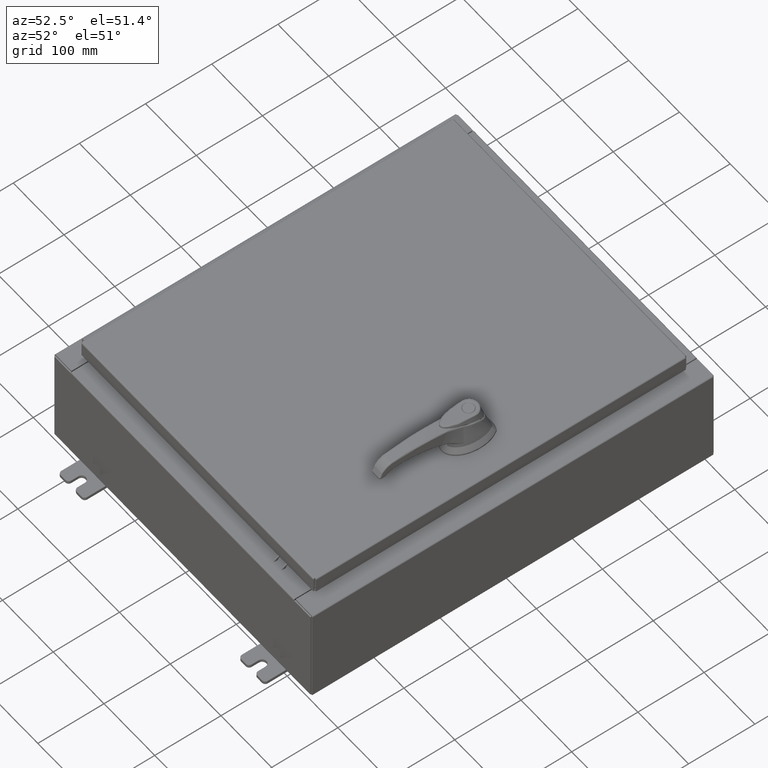
[diagram: clean part render]
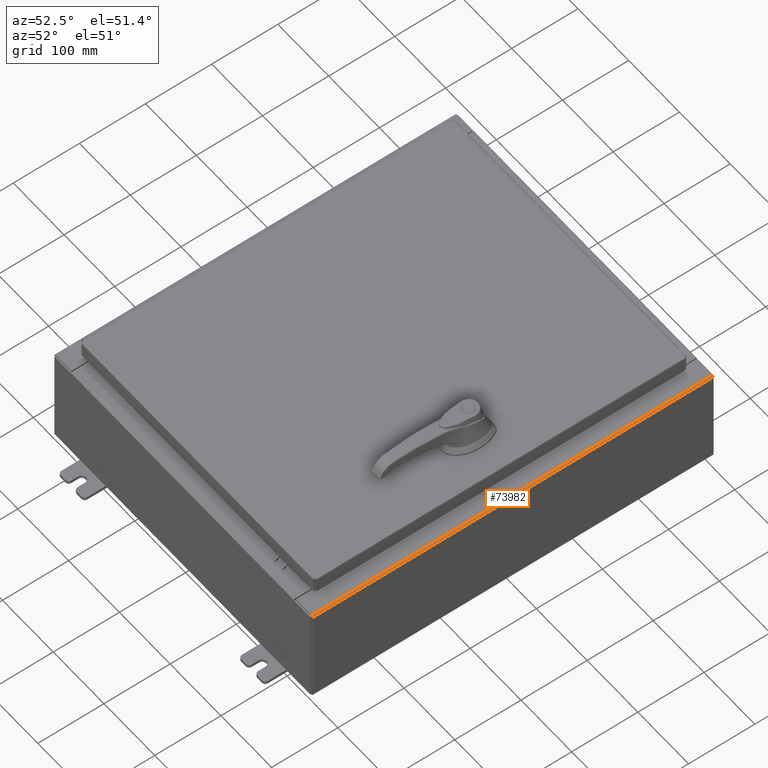
[diagram: same view with one face highlighted and labeled with its STEP entity id]
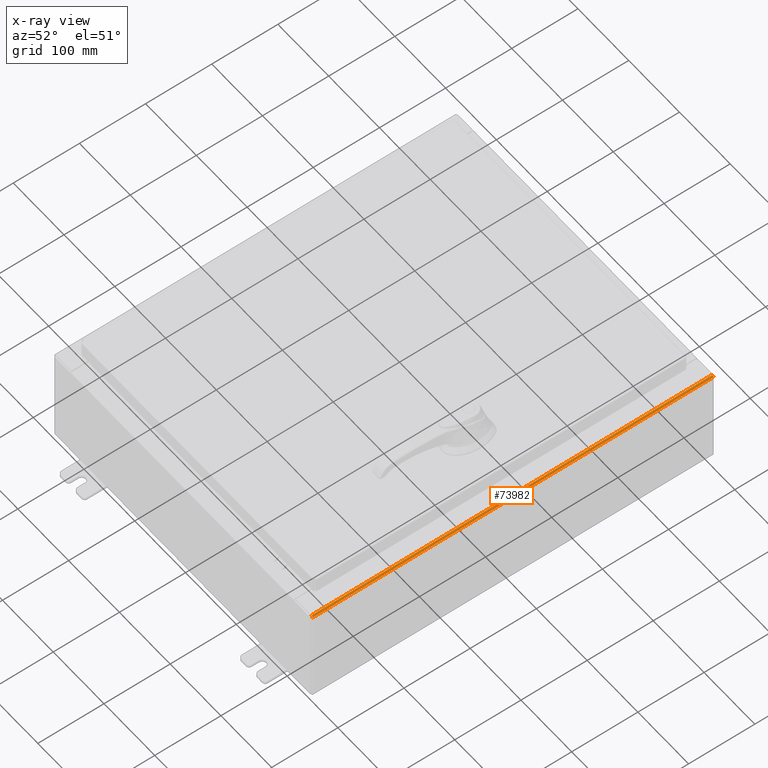
[diagram: x-ray of the same camera — body ghosted, the highlighted face saturated]
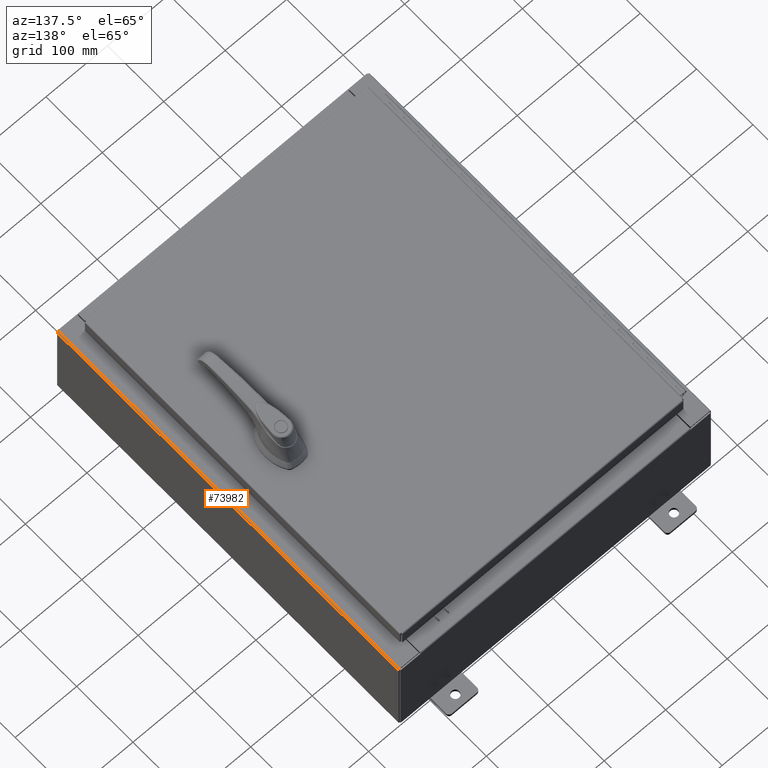
[diagram: same view with one face highlighted and labeled with its STEP entity id]
A machine part, auxiliary view. The second image highlights one B-rep face of the part: STEP entity #73982.
The next image is the same camera in x-ray: the body ghosted, the highlighted face saturated — about 0% of this face is hidden behind the body in this view.
A second angle (auxiliary view) of the same face is appended — the face is thin or edge-on in the first view.
In plain terms, the highlighted cylindrical surface (edge-blend (fillet) strip) has radius 2.2276 mm, axis along (0, 1, 0).
Its self-contained STEP definition (entity closure, byte-faithful):
#2399 = CYLINDRICAL_SURFACE ( 'NONE', #69976, 0.08770000000000026400 ) ;
#3022 = ORIENTED_EDGE ( 'NONE', *, *, #90266, .T. ) ;
#4535 = DIRECTION ( 'NONE',  ( -0.0000000000000000000, -1.000000000000000000, -0.0000000000000000000 ) ) ;
#5617 = DIRECTION ( 'NONE',  ( -0.0000000000000000000, -1.000000000000000000, -0.0000000000000000000 ) ) ;
#8691 = CARTESIAN_POINT ( 'NONE',  ( 10.00000000000002000, -11.92530000000000000, 5.837600000000001000 ) ) ;
#13906 = VECTOR ( 'NONE', #53774, 39.37007874015748100 ) ;
#16654 = LINE ( 'NONE', #106351, #13906 ) ;
#22574 = CARTESIAN_POINT ( 'NONE',  ( 10.00000000000002000, 11.92529999999999800, 5.837600000000001000 ) ) ;
#23485 = CARTESIAN_POINT ( 'NONE',  ( 9.912300000000019700, 11.92530000000000000, 5.837600000000001000 ) ) ;
#25874 = DIRECTION ( 'NONE',  ( 0.0000000000000000000, 1.000000000000000000, 0.0000000000000000000 ) ) ;
#27899 = VERTEX_POINT ( 'NONE', #8691 ) ;
#31167 = VERTEX_POINT ( 'NONE', #110045 ) ;
#32169 = ORIENTED_EDGE ( 'NONE', *, *, #75721, .F. ) ;
#37696 = ORIENTED_EDGE ( 'NONE', *, *, #47014, .F. ) ;
#47014 = EDGE_CURVE ( 'NONE', #104073, #27899, #63547, .T. ) ;
#47085 = VERTEX_POINT ( 'NONE', #51935 ) ;
#47199 = CIRCLE ( 'NONE', #73713, 0.08770000000000026400 ) ;
#51935 = CARTESIAN_POINT ( 'NONE',  ( 9.912300000000019700, 11.92529999999999800, 5.925300000000001800 ) ) ;
#53774 = DIRECTION ( 'NONE',  ( -0.0000000000000000000, -1.000000000000000000, -0.0000000000000000000 ) ) ;
#54156 = EDGE_LOOP ( 'NONE', ( #37696, #32169, #3022, #87648 ) ) ;
#57026 = CARTESIAN_POINT ( 'NONE',  ( 9.912300000000019700, -11.92530000000000000, 5.837600000000001000 ) ) ;
#58110 = CARTESIAN_POINT ( 'NONE',  ( 10.00000000000002000, 11.92530000000000000, 5.837600000000001000 ) ) ;
#63547 = LINE ( 'NONE', #58110, #110259 ) ;
#65831 = DIRECTION ( 'NONE',  ( 0.0000000000000000000, 0.0000000000000000000, 1.000000000000000000 ) ) ;
#66836 = DIRECTION ( 'NONE',  ( 0.0000000000000000000, 0.0000000000000000000, 1.000000000000000000 ) ) ;
#69976 = AXIS2_PLACEMENT_3D ( 'NONE', #23485, #84861, #66836 ) ;
#72347 = FACE_OUTER_BOUND ( 'NONE', #54156, .T. ) ;
#73713 = AXIS2_PLACEMENT_3D ( 'NONE', #57026, #4535, #65831 ) ;
#73982 = ADVANCED_FACE ( 'NONE', ( #72347 ), #2399, .T. ) ;
#74874 = CIRCLE ( 'NONE', #84753, 0.08770000000000026400 ) ;
#75721 = EDGE_CURVE ( 'NONE', #47085, #104073, #74874, .T. ) ;
#78408 = CARTESIAN_POINT ( 'NONE',  ( 9.912300000000019700, 11.92529999999999800, 5.837600000000001000 ) ) ;
#84753 = AXIS2_PLACEMENT_3D ( 'NONE', #78408, #25874, #87242 ) ;
#84861 = DIRECTION ( 'NONE',  ( 0.0000000000000000000, 1.000000000000000000, 0.0000000000000000000 ) ) ;
#87242 = DIRECTION ( 'NONE',  ( 0.0000000000000000000, 0.0000000000000000000, 1.000000000000000000 ) ) ;
#87648 = ORIENTED_EDGE ( 'NONE', *, *, #111710, .F. ) ;
#90266 = EDGE_CURVE ( 'NONE', #47085, #31167, #16654, .T. ) ;
#104073 = VERTEX_POINT ( 'NONE', #22574 ) ;
#106351 = CARTESIAN_POINT ( 'NONE',  ( 9.912300000000019700, -11.92530000000000000, 5.925300000000001800 ) ) ;
#110045 = CARTESIAN_POINT ( 'NONE',  ( 9.912300000000019700, -11.92530000000000000, 5.925300000000001800 ) ) ;
#110259 = VECTOR ( 'NONE', #5617, 39.37007874015748100 ) ;
#111710 = EDGE_CURVE ( 'NONE', #27899, #31167, #47199, .T. ) ;